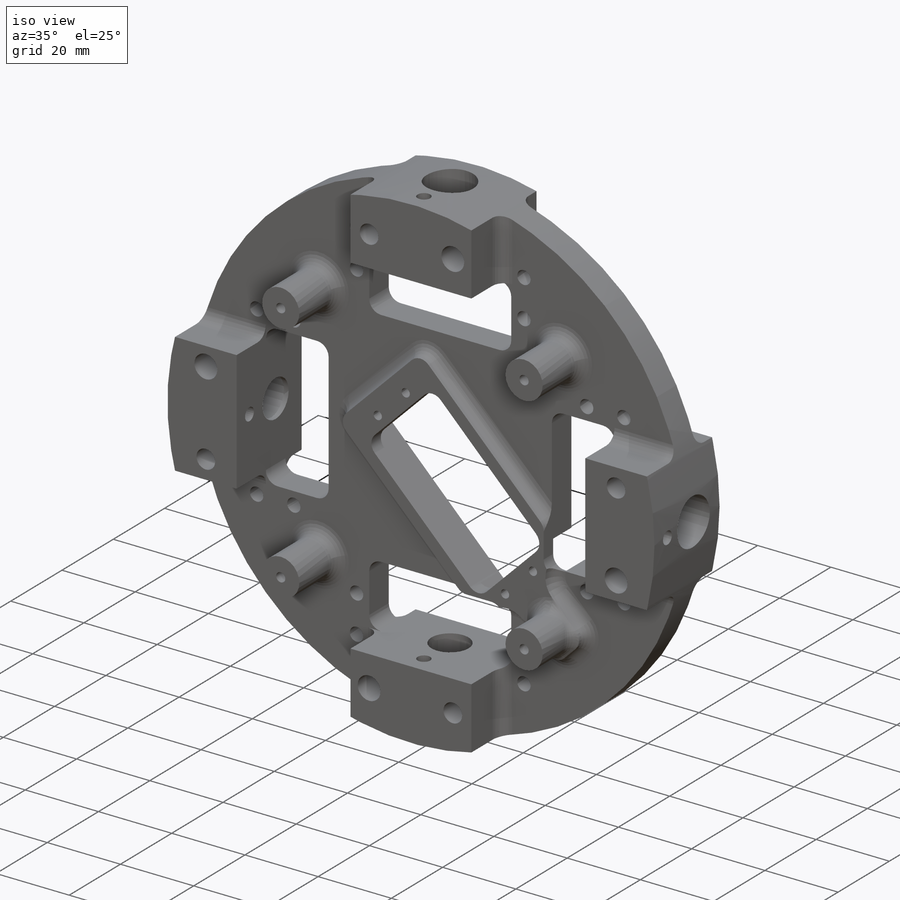
[diagram: iso view]
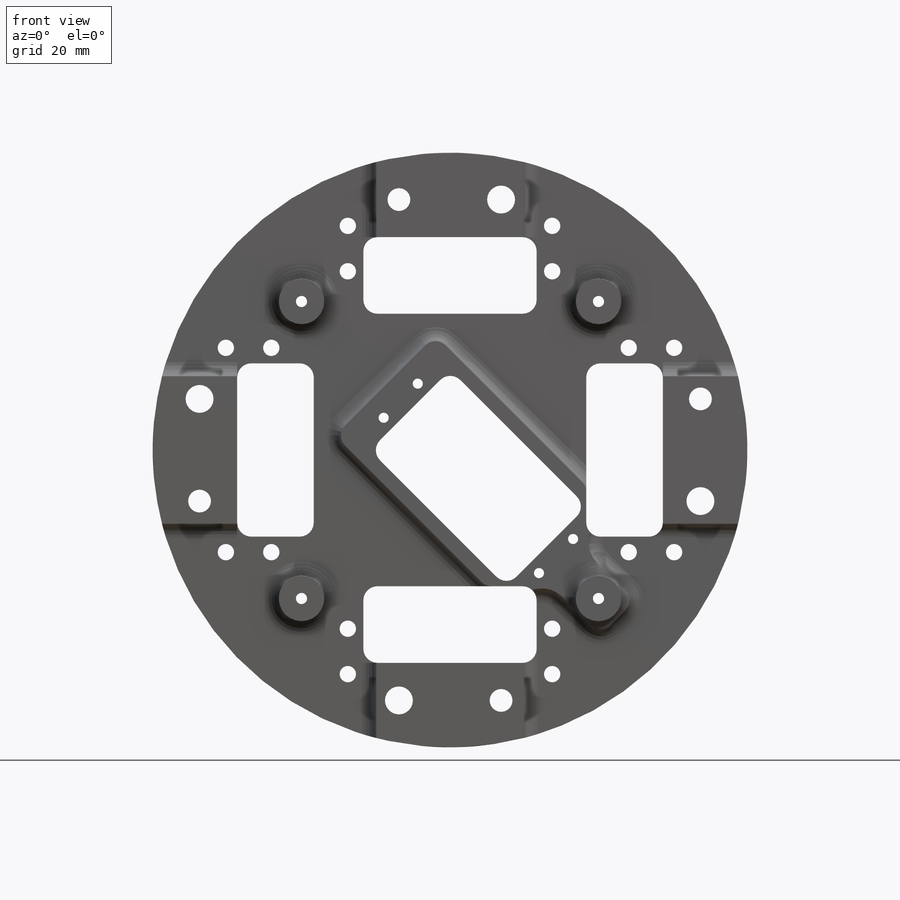
[diagram: front view]
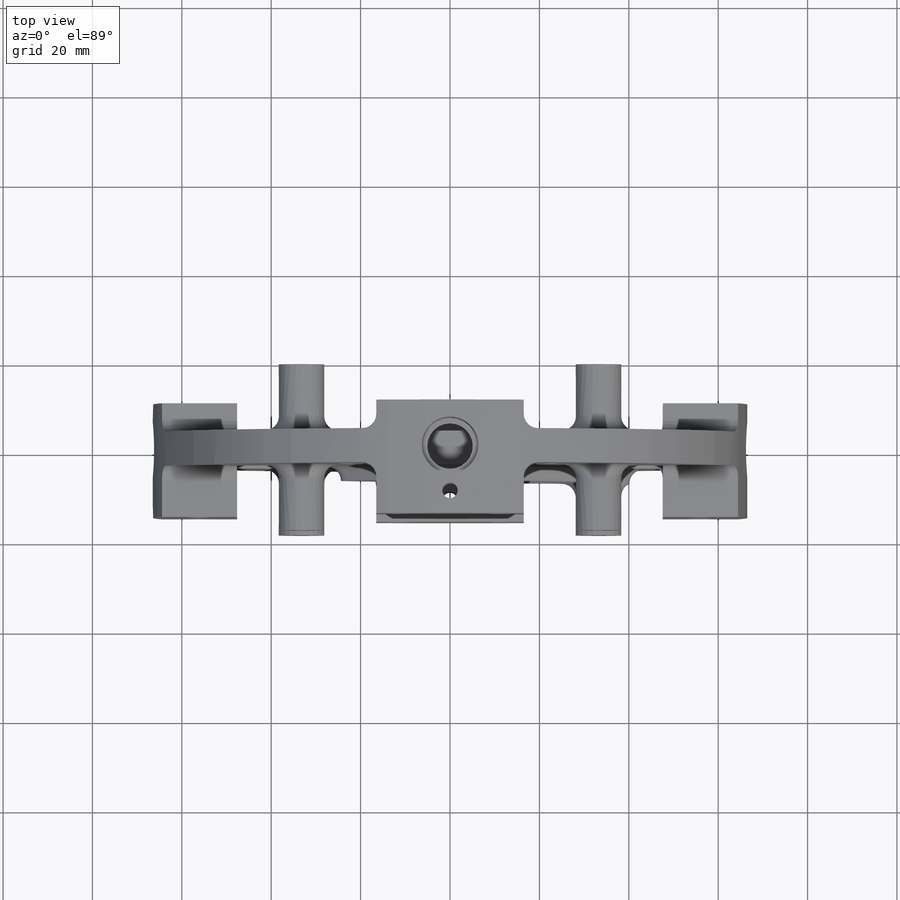
[diagram: top view]
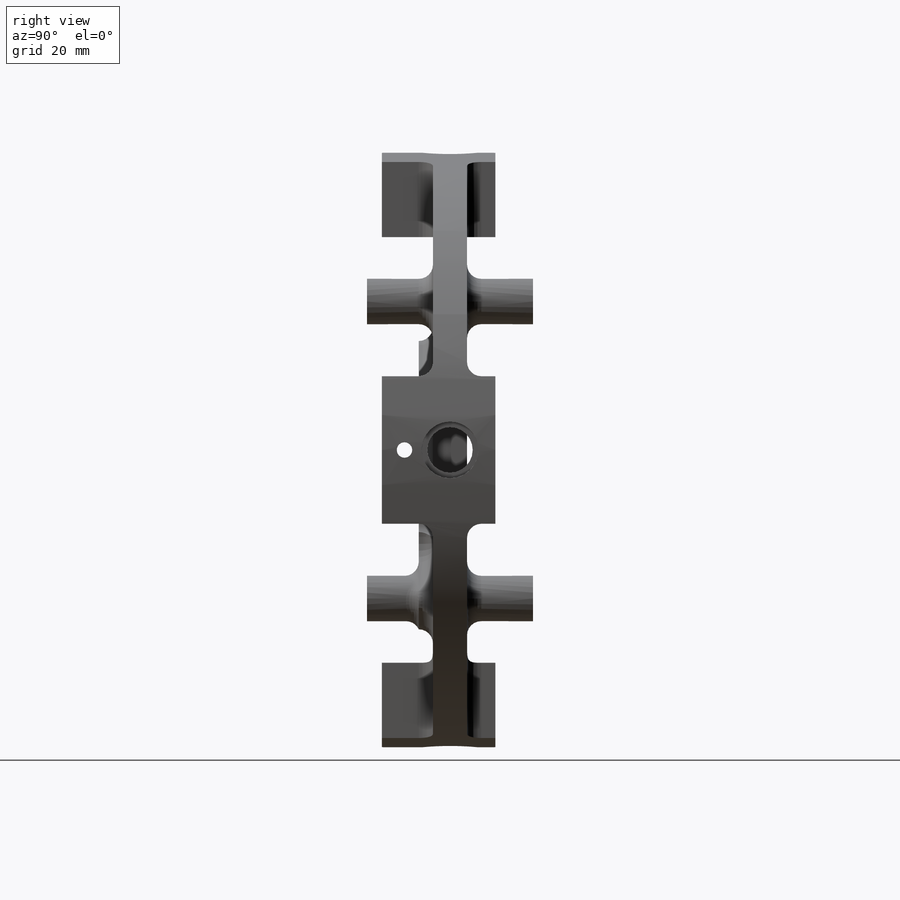
[diagram: right view]
SOLIDWORKS PART (.sldprt)
format: sldprt  version: not decoded by parser v0  size: 991,232 bytes
history: native  units: mm
features: sketch x19, fillet x11, cut_extrude x5, extrude x4, hole x3, plane x2, pattern_circular x2, material x1 (+12 scaffold rows collapsed)
feature tree (59):
  scaffold x12  (default folders/planes/origin — collapsed)
  material  "6061-T6 (SS)"
  sketch  "Sketch1"  dims[D1=133.0452mm]
  extrude  "Extrude1"  Depth=3.81mm
  sketch  "Sketch18"  dims[c1.D1=16.51mm c2.D1=~10.232253deg]
  extrude  "Extrude4"  Depth=15.24mm
  sketch  "Sketch56"  dims[D1=5.08mm]
  sketch  "Sketch29"  dims[D1=46.99mm]
  extrude  "Extrude8"  Depth=18.5674mm
  hole  "D (0.246) Diameter Hole1"  Diameter=6.2484mm Depth=33.8074mm
  sketch  "3DSketch7"  dims[D1=5.08mm]
  sketch  "Sketch54"  dims[hole-wizard template sketch: 59 standard entries collapsed; hole parameters kept: c18.Thru Hole Dia.=6.2484mm c18.Thru Hole Depth=33.8074mm]
  hole  "#7 (0.201) Diameter Hole1"  Diameter=5.1054mm Depth=33.8074mm
  sketch  "3DSketch8"
  sketch  "Sketch55"  dims[hole-wizard template sketch: 60 standard entries collapsed; hole parameters kept: c18.Thru Hole Depth=33.8074mm]
  sketch  "Sketch44"  dims[D1=31.75mm]
  extrude  "Extrude15"  Depth=3.175mm
  sketch  "Sketch37"  dims[D1=12.6238mm]
  cut_extrude  "Extrude13"  [1 undecoded]
  sketch  "Sketch39"  dims[D1=12.7mm]
  cut_extrude  "Extrude14"  Depth=7.112mm
  fillet  "Fillet8"  Radius=3.175mm
  sketch  "Sketch19"  dims[c1.D1=~2.49936mm c1.D2=~1.24968mm c2.D1=46.99mm c2.D2=17.145mm]
  cut_extrude  "Extrude5"  [1 undecoded]
  fillet  "Fillet1"  Radius=3.175mm
  fillet  "Fillet29"  Radius=3.175mm
  sketch  "Sketch20"  dims[D1=10.1854mm]
  cut_extrude  "Extrude6"  [1 undecoded]
  plane  "Plane1"  Offset=1.27mm
  sketch  "Sketch45"  dims[D1=6.223mm]
  cut_extrude  "Extrude16"  [1 undecoded]
  sketch  "Sketch41"  dims[D1=2.54mm]
  hole  "#27 (0.144) Diameter Hole1"  Diameter=3.6576mm Depth=12.7mm
  sketch  "3DSketch2"
  sketch  "Sketch42"  dims[hole-wizard template sketch: 47 standard entries collapsed; hole parameters kept: c15.Hole Depth=12.7mm c15.D3=~14.816244mm c15.Drill Angle=118.0deg]
  pattern_circular  "CirPattern5"  Count=4 Angle=90deg
  fillet  "Fillet31"  Radius=3.175mm
  fillet  "Fillet21"  Radius=3.175mm
  fillet  "Fillet10"  Radius=3.175mm
  fillet  "Fillet15"  Radius=3.175mm
  fillet  "Fillet12"  Radius=6.35mm
  fillet  "Fillet17"  Radius=3.175mm
  fillet  "Fillet25"  Radius=3.175mm
  fillet  "Fillet30"  Radius=3.175mm
  plane  "Plane6"  Offset=50.8mm
  sketch  "Sketch61"
  sketch  "Sketch60"  dims[D1=76.2mm]
  pattern_circular  "Coordinate System3"  [2 undecoded]
decode coverage: 36 of 44 modeling features carry decoded parameters
note: ~ marks probable driven/reference dimensions
note: 6 parameter values undecoded
summary: no parameter record found for 4 features
note: suppression state not decoded; provenance and decode notes live in map.json
